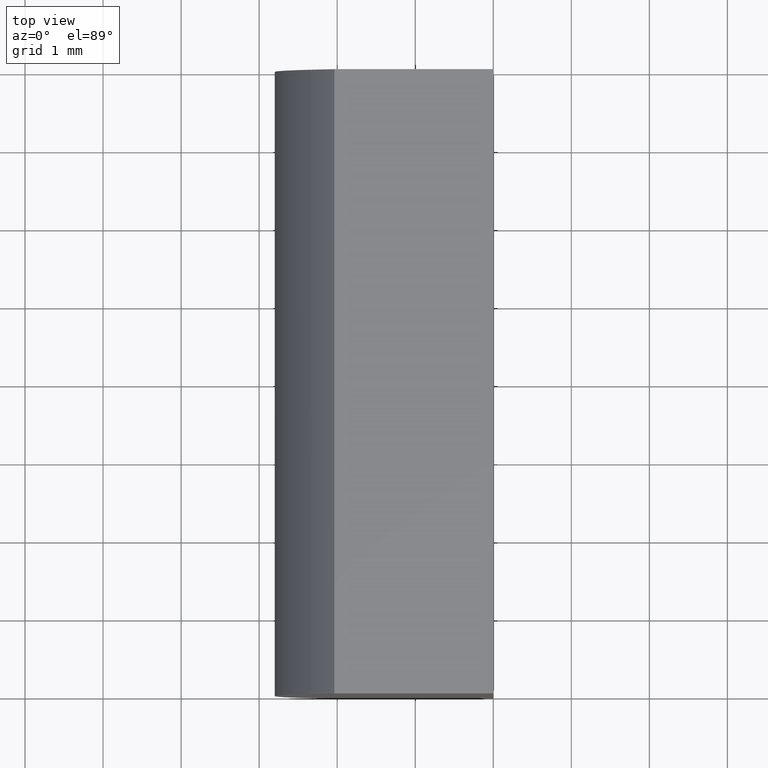
[diagram: clean part render]
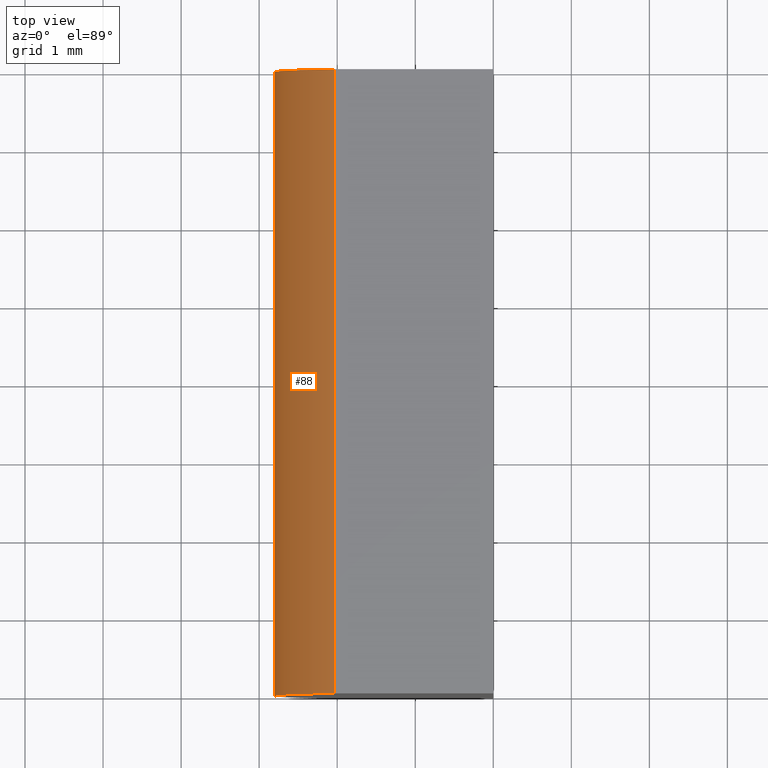
[diagram: same view with one face highlighted and labeled with its STEP entity id]
A machine part, top view. The second image highlights one B-rep face of the part: STEP entity #88.
In plain terms, the highlighted cylindrical surface (partial cylindrical patch) has radius 3 mm, axis along (-0, -1, -0).
Its self-contained STEP definition (entity closure, byte-faithful):
#12 = CARTESIAN_POINT ( 'NONE',  ( -2.036067977499788700, 8.000000000000000000, 4.000000000000000000 ) ) ;
#23 = CARTESIAN_POINT ( 'NONE',  ( -2.036067977499787900, 8.000000000000000000, -4.336808689942017700E-016 ) ) ;
#24 = EDGE_CURVE ( 'NONE', #172, #33, #69, .T. ) ;
#30 = EDGE_CURVE ( 'NONE', #132, #32, #179, .T. ) ;
#31 = ORIENTED_EDGE ( 'NONE', *, *, #24, .F. ) ;
#32 = VERTEX_POINT ( 'NONE', #148 ) ;
#33 = VERTEX_POINT ( 'NONE', #149 ) ;
#34 = CARTESIAN_POINT ( 'NONE',  ( 0.2000000000000005100, 0.0000000000000000000, 2.000000000000000000 ) ) ;
#56 = DIRECTION ( 'NONE',  ( 0.0000000000000000000, 0.0000000000000000000, 1.000000000000000000 ) ) ;
#58 = DIRECTION ( 'NONE',  ( 0.0000000000000000000, 0.0000000000000000000, -1.000000000000000000 ) ) ;
#63 = ORIENTED_EDGE ( 'NONE', *, *, #83, .F. ) ;
#69 = LINE ( 'NONE', #159, #170 ) ;
#73 = AXIS2_PLACEMENT_3D ( 'NONE', #34, #192, #134 ) ;
#77 = ORIENTED_EDGE ( 'NONE', *, *, #30, .T. ) ;
#83 = EDGE_CURVE ( 'NONE', #132, #172, #136, .T. ) ;
#88 = ADVANCED_FACE ( 'NONE', ( #114 ), #156, .T. ) ;
#103 = CARTESIAN_POINT ( 'NONE',  ( -2.036067977499787900, 8.000000000000000000, -4.336808689942017700E-016 ) ) ;
#114 = FACE_OUTER_BOUND ( 'NONE', #140, .T. ) ;
#124 = DIRECTION ( 'NONE',  ( 0.0000000000000000000, 1.000000000000000000, 0.0000000000000000000 ) ) ;
#125 = AXIS2_PLACEMENT_3D ( 'NONE', #185, #182, #58 ) ;
#132 = VERTEX_POINT ( 'NONE', #23 ) ;
#134 = DIRECTION ( 'NONE',  ( 0.0000000000000000000, 0.0000000000000000000, 1.000000000000000000 ) ) ;
#136 = CIRCLE ( 'NONE', #195, 2.999999999999999100 ) ;
#137 = DIRECTION ( 'NONE',  ( -0.0000000000000000000, -1.000000000000000000, -0.0000000000000000000 ) ) ;
#140 = EDGE_LOOP ( 'NONE', ( #166, #31, #63, #77 ) ) ;
#142 = CIRCLE ( 'NONE', #73, 2.999999999999999100 ) ;
#148 = CARTESIAN_POINT ( 'NONE',  ( -2.036067977499787900, 0.0000000000000000000, -4.336808689942017700E-016 ) ) ;
#149 = CARTESIAN_POINT ( 'NONE',  ( -2.036067977499788700, 0.0000000000000000000, 4.000000000000000000 ) ) ;
#156 = CYLINDRICAL_SURFACE ( 'NONE', #125, 2.999999999999999600 ) ;
#159 = CARTESIAN_POINT ( 'NONE',  ( -2.036067977499788700, 8.000000000000000000, 4.000000000000000000 ) ) ;
#166 = ORIENTED_EDGE ( 'NONE', *, *, #180, .T. ) ;
#167 = DIRECTION ( 'NONE',  ( -0.0000000000000000000, -1.000000000000000000, -0.0000000000000000000 ) ) ;
#170 = VECTOR ( 'NONE', #137, 1000.000000000000000 ) ;
#172 = VERTEX_POINT ( 'NONE', #12 ) ;
#179 = LINE ( 'NONE', #103, #194 ) ;
#180 = EDGE_CURVE ( 'NONE', #32, #33, #142, .T. ) ;
#182 = DIRECTION ( 'NONE',  ( -0.0000000000000000000, -1.000000000000000000, -0.0000000000000000000 ) ) ;
#183 = CARTESIAN_POINT ( 'NONE',  ( 0.2000000000000005100, 8.000000000000000000, 2.000000000000000000 ) ) ;
#185 = CARTESIAN_POINT ( 'NONE',  ( 0.2000000000000005100, 8.000000000000000000, 2.000000000000000000 ) ) ;
#192 = DIRECTION ( 'NONE',  ( 0.0000000000000000000, 1.000000000000000000, 0.0000000000000000000 ) ) ;
#194 = VECTOR ( 'NONE', #167, 1000.000000000000000 ) ;
#195 = AXIS2_PLACEMENT_3D ( 'NONE', #183, #124, #56 ) ;